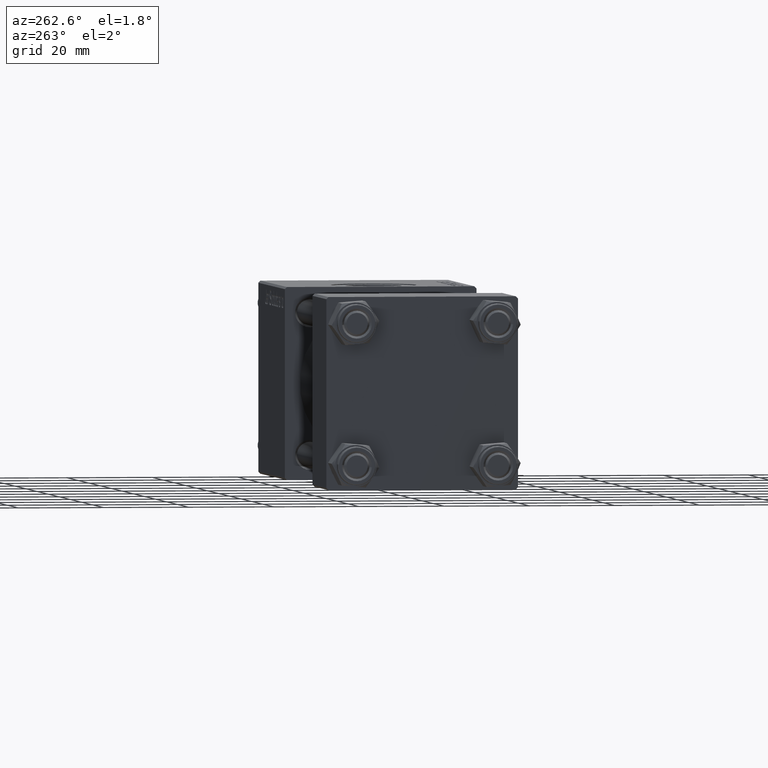
[diagram: clean part render]
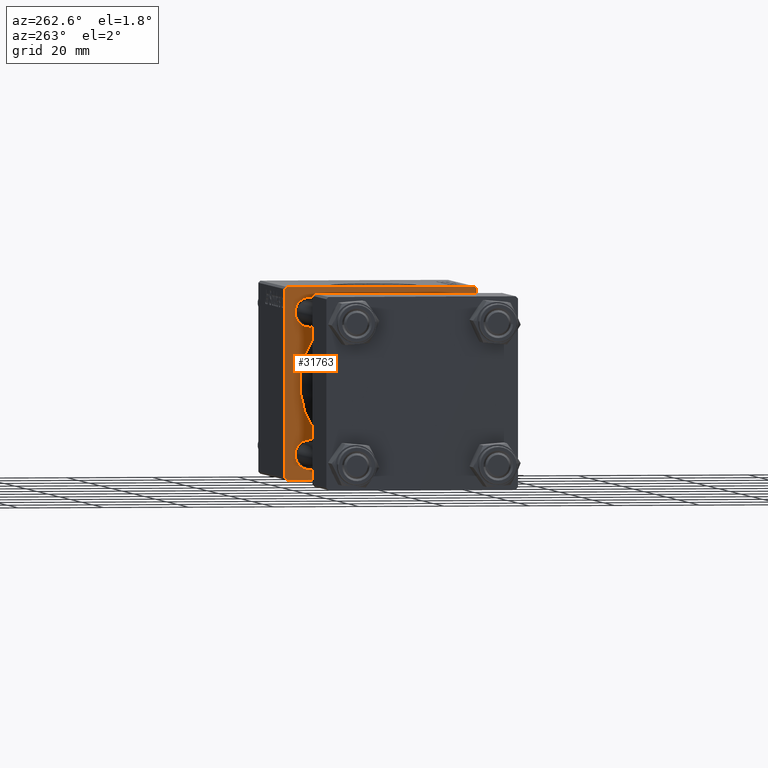
[diagram: same view with one face highlighted and labeled with its STEP entity id]
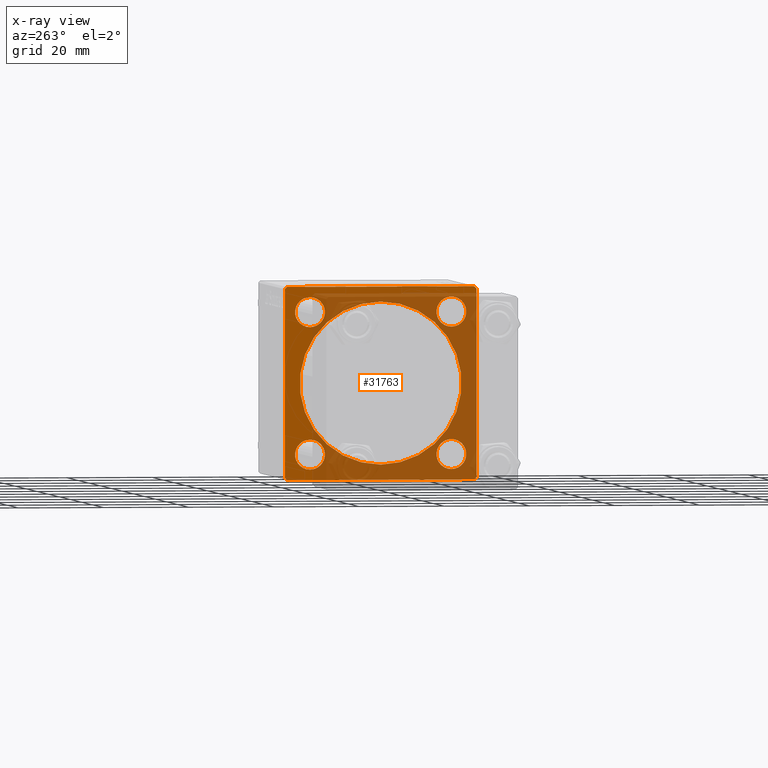
[diagram: x-ray of the same camera — body ghosted, the highlighted face saturated]
A machine part, auxiliary view. The second image highlights one B-rep face of the part: STEP entity #31763.
The next image is the same camera in x-ray: the body ghosted, the highlighted face saturated — about 64% of this face is hidden behind the body in this view.
In plain terms, the highlighted planar face has unit normal (-1, 0, 0).
Its self-contained STEP definition (entity closure, byte-faithful):
#46 = EDGE_CURVE ( 'NONE', #28983, #19035, #45981, .T. ) ;
#94 = EDGE_CURVE ( 'NONE', #28171, #11331, #38461, .T. ) ;
#690 = CARTESIAN_POINT ( 'NONE',  ( 75.00000000000001421, 22.24999999999969802, -22.25000000000031619 ) ) ;
#840 = ORIENTED_EDGE ( 'NONE', *, *, #94, .T. ) ;
#2600 = CIRCLE ( 'NONE', #16367, 3.500000000000016875 ) ;
#3164 = DIRECTION ( 'NONE',  ( 0.000000000000000000, 0.000000000000000000, 1.000000000000000000 ) ) ;
#3290 = CARTESIAN_POINT ( 'NONE',  ( 75.00000000000001421, 21.99999999999996092, 22.50000000000000355 ) ) ;
#4257 = EDGE_CURVE ( 'NONE', #14070, #32878, #22570, .T. ) ;
#4744 = AXIS2_PLACEMENT_3D ( 'NONE', #13042, #56680, #8458 ) ;
#5573 = DIRECTION ( 'NONE',  ( -0.000000000000000000, -0.7071067811865573427, -0.7071067811865378028 ) ) ;
#5699 = CARTESIAN_POINT ( 'NONE',  ( 75.00000000000001421, -16.59999999999999076, -16.60000000000000853 ) ) ;
#6862 = CARTESIAN_POINT ( 'NONE',  ( 75.00000000000001421, -16.59999999999999076, -16.60000000000000853 ) ) ;
#7184 = CARTESIAN_POINT ( 'NONE',  ( 75.00000000000001421, 16.59999999999999787, -16.60000000000000497 ) ) ;
#7505 = AXIS2_PLACEMENT_3D ( 'NONE', #16372, #43046, #33889 ) ;
#7934 = CIRCLE ( 'NONE', #20755, 3.500000000000031086 ) ;
#8071 = DIRECTION ( 'NONE',  ( -1.000000000000000000, 0.000000000000000000, -0.000000000000000000 ) ) ;
#8458 = DIRECTION ( 'NONE',  ( 0.000000000000000000, 0.000000000000000000, -1.000000000000000000 ) ) ;
#8726 = VERTEX_POINT ( 'NONE', #40733 ) ;
#9199 = FACE_BOUND ( 'NONE', #53203, .T. ) ;
#9352 = VECTOR ( 'NONE', #5573, 1000.000000000000000 ) ;
#9434 = VERTEX_POINT ( 'NONE', #39604 ) ;
#10252 = EDGE_LOOP ( 'NONE', ( #47185, #840, #38396, #44539, #15645, #17688, #49747, #10818 ) ) ;
#10411 = EDGE_LOOP ( 'NONE', ( #49089, #30393 ) ) ;
#10435 = EDGE_CURVE ( 'NONE', #28783, #11331, #42753, .T. ) ;
#10595 = CARTESIAN_POINT ( 'NONE',  ( 75.00000000000001421, 16.59999999999999787, 20.10000000000001918 ) ) ;
#10631 = CARTESIAN_POINT ( 'NONE',  ( 75.00000000000001421, -2.752562955852396712E-16, -19.00000000000000000 ) ) ;
#10711 = ORIENTED_EDGE ( 'NONE', *, *, #26306, .T. ) ;
#10818 = ORIENTED_EDGE ( 'NONE', *, *, #41270, .T. ) ;
#10822 = LINE ( 'NONE', #23754, #53049 ) ;
#10922 = CIRCLE ( 'NONE', #33833, 3.500000000000031086 ) ;
#10996 = VECTOR ( 'NONE', #24161, 1000.000000000000000 ) ;
#11331 = VERTEX_POINT ( 'NONE', #39867 ) ;
#11589 = DIRECTION ( 'NONE',  ( 1.000000000000000000, -0.000000000000000000, 0.000000000000000000 ) ) ;
#11865 = DIRECTION ( 'NONE',  ( 0.000000000000000000, 0.000000000000000000, 1.000000000000000000 ) ) ;
#12050 = DIRECTION ( 'NONE',  ( 0.000000000000000000, 0.000000000000000000, -1.000000000000000000 ) ) ;
#12143 = VERTEX_POINT ( 'NONE', #46174 ) ;
#12277 = VERTEX_POINT ( 'NONE', #41046 ) ;
#12932 = PLANE ( 'NONE',  #22966 ) ;
#13042 = CARTESIAN_POINT ( 'NONE',  ( 75.00000000000001421, -2.602085213965210642E-15, 0.000000000000000000 ) ) ;
#14070 = VERTEX_POINT ( 'NONE', #35146 ) ;
#14315 = EDGE_CURVE ( 'NONE', #47778, #16507, #7934, .T. ) ;
#15547 = CARTESIAN_POINT ( 'NONE',  ( 75.00000000000001421, 22.50000000000000355, -22.49999999999999645 ) ) ;
#15645 = ORIENTED_EDGE ( 'NONE', *, *, #38662, .F. ) ;
#16367 = AXIS2_PLACEMENT_3D ( 'NONE', #20495, #11589, #11865 ) ;
#16372 = CARTESIAN_POINT ( 'NONE',  ( 75.00000000000001421, 16.59999999999999787, 16.60000000000000497 ) ) ;
#16507 = VERTEX_POINT ( 'NONE', #49806 ) ;
#16801 = VECTOR ( 'NONE', #12050, 1000.000000000000000 ) ;
#17393 = DIRECTION ( 'NONE',  ( 0.000000000000000000, 0.7071067811865573427, -0.7071067811865378028 ) ) ;
#17681 = EDGE_CURVE ( 'NONE', #27534, #48179, #52001, .T. ) ;
#17688 = ORIENTED_EDGE ( 'NONE', *, *, #52881, .T. ) ;
#18482 = VECTOR ( 'NONE', #17393, 1000.000000000000000 ) ;
#19035 = VERTEX_POINT ( 'NONE', #36393 ) ;
#19848 = LINE ( 'NONE', #15547, #10996 ) ;
#19883 = ORIENTED_EDGE ( 'NONE', *, *, #54006, .T. ) ;
#20227 = CARTESIAN_POINT ( 'NONE',  ( 75.00000000000001421, -16.59999999999999076, 16.60000000000000853 ) ) ;
#20495 = CARTESIAN_POINT ( 'NONE',  ( 75.00000000000001421, 16.59999999999999787, 16.60000000000000497 ) ) ;
#20755 = AXIS2_PLACEMENT_3D ( 'NONE', #7184, #24703, #3164 ) ;
#20783 = DIRECTION ( 'NONE',  ( 1.000000000000000000, 0.000000000000000000, 0.000000000000000000 ) ) ;
#20942 = ORIENTED_EDGE ( 'NONE', *, *, #47169, .T. ) ;
#21352 = ORIENTED_EDGE ( 'NONE', *, *, #17681, .T. ) ;
#21562 = FACE_BOUND ( 'NONE', #41088, .T. ) ;
#21837 = CARTESIAN_POINT ( 'NONE',  ( 75.00000000000001421, -16.59999999999999076, 16.60000000000000853 ) ) ;
#22170 = AXIS2_PLACEMENT_3D ( 'NONE', #20227, #37728, #55258 ) ;
#22216 = VECTOR ( 'NONE', #45379, 1000.000000000000000 ) ;
#22290 = DIRECTION ( 'NONE',  ( 0.000000000000000000, 0.000000000000000000, -1.000000000000000000 ) ) ;
#22375 = DIRECTION ( 'NONE',  ( 0.000000000000000000, -0.7071067811865425767, 0.7071067811865525687 ) ) ;
#22570 = LINE ( 'NONE', #52732, #36840 ) ;
#22966 = AXIS2_PLACEMENT_3D ( 'NONE', #25865, #8071, #51993 ) ;
#23309 = ORIENTED_EDGE ( 'NONE', *, *, #54502, .T. ) ;
#23754 = CARTESIAN_POINT ( 'NONE',  ( 75.00000000000001421, -22.24999999999969447, 22.25000000000030909 ) ) ;
#23756 = CARTESIAN_POINT ( 'NONE',  ( 75.00000000000001421, 22.50000000000000355, -21.99999999999999645 ) ) ;
#24139 = CARTESIAN_POINT ( 'NONE',  ( 75.00000000000001421, -22.49999999999999645, 22.49999999999999289 ) ) ;
#24161 = DIRECTION ( 'NONE',  ( 0.000000000000000000, -1.000000000000000000, -7.709882115452476934E-17 ) ) ;
#24654 = DIRECTION ( 'NONE',  ( 0.000000000000000000, 0.000000000000000000, 1.000000000000000000 ) ) ;
#24703 = DIRECTION ( 'NONE',  ( 1.000000000000000000, -0.000000000000000000, 0.000000000000000000 ) ) ;
#24904 = ORIENTED_EDGE ( 'NONE', *, *, #54891, .T. ) ;
#24996 = CARTESIAN_POINT ( 'NONE',  ( 75.00000000000001421, -16.59999999999999076, 20.10000000000002274 ) ) ;
#25267 = EDGE_CURVE ( 'NONE', #28783, #12277, #10822, .T. ) ;
#25318 = ORIENTED_EDGE ( 'NONE', *, *, #41386, .T. ) ;
#25865 = CARTESIAN_POINT ( 'NONE',  ( 75.00000000000001421, 0.000000000000000000, 0.000000000000000000 ) ) ;
#26306 = EDGE_CURVE ( 'NONE', #19035, #28983, #2600, .T. ) ;
#26397 = CARTESIAN_POINT ( 'NONE',  ( 75.00000000000001421, -22.25000000000015277, -22.24999999999984013 ) ) ;
#27038 = EDGE_CURVE ( 'NONE', #16507, #47778, #10922, .T. ) ;
#27231 = AXIS2_PLACEMENT_3D ( 'NONE', #33995, #20783, #38566 ) ;
#27534 = VERTEX_POINT ( 'NONE', #10631 ) ;
#27881 = CARTESIAN_POINT ( 'NONE',  ( 75.00000000000001421, 22.50000000000000355, 22.50000000000000355 ) ) ;
#27973 = CIRCLE ( 'NONE', #32538, 3.500000000000031086 ) ;
#28171 = VERTEX_POINT ( 'NONE', #43541 ) ;
#28783 = VERTEX_POINT ( 'NONE', #51761 ) ;
#28983 = VERTEX_POINT ( 'NONE', #10595 ) ;
#29515 = CIRCLE ( 'NONE', #4744, 19.00000000000000000 ) ;
#30393 = ORIENTED_EDGE ( 'NONE', *, *, #14315, .T. ) ;
#30852 = EDGE_CURVE ( 'NONE', #12143, #28171, #19848, .T. ) ;
#30882 = LINE ( 'NONE', #35747, #18482 ) ;
#31372 = AXIS2_PLACEMENT_3D ( 'NONE', #21837, #39338, #38491 ) ;
#31763 = ADVANCED_FACE ( 'NONE', ( #9199, #34490, #47395, #21562, #47671, #38780 ), #12932, .T. ) ;
#32000 = LINE ( 'NONE', #690, #9352 ) ;
#32116 = DIRECTION ( 'NONE',  ( 1.000000000000000000, -0.000000000000000000, 0.000000000000000000 ) ) ;
#32538 = AXIS2_PLACEMENT_3D ( 'NONE', #6862, #42141, #24654 ) ;
#32878 = VERTEX_POINT ( 'NONE', #23756 ) ;
#33204 = AXIS2_PLACEMENT_3D ( 'NONE', #5699, #32116, #53654 ) ;
#33833 = AXIS2_PLACEMENT_3D ( 'NONE', #49020, #49582, #41246 ) ;
#33889 = DIRECTION ( 'NONE',  ( 0.000000000000000000, 0.000000000000000000, 1.000000000000000000 ) ) ;
#33995 = CARTESIAN_POINT ( 'NONE',  ( 75.00000000000001421, -2.602085213965210642E-15, 0.000000000000000000 ) ) ;
#34305 = ORIENTED_EDGE ( 'NONE', *, *, #46, .T. ) ;
#34490 = FACE_BOUND ( 'NONE', #52270, .T. ) ;
#34893 = CARTESIAN_POINT ( 'NONE',  ( 75.00000000000001421, -16.59999999999999076, 13.09999999999999076 ) ) ;
#35146 = CARTESIAN_POINT ( 'NONE',  ( 75.00000000000001421, 22.50000000000000355, 21.99999999999997513 ) ) ;
#35747 = CARTESIAN_POINT ( 'NONE',  ( 75.00000000000001421, 22.24999999999968026, 22.25000000000029488 ) ) ;
#36393 = CARTESIAN_POINT ( 'NONE',  ( 75.00000000000001421, 16.59999999999999787, 13.09999999999998721 ) ) ;
#36840 = VECTOR ( 'NONE', #22290, 1000.000000000000000 ) ;
#37728 = DIRECTION ( 'NONE',  ( 1.000000000000000000, -0.000000000000000000, 0.000000000000000000 ) ) ;
#38396 = ORIENTED_EDGE ( 'NONE', *, *, #10435, .F. ) ;
#38461 = LINE ( 'NONE', #26397, #51520 ) ;
#38491 = DIRECTION ( 'NONE',  ( 0.000000000000000000, 0.000000000000000000, 1.000000000000000000 ) ) ;
#38566 = DIRECTION ( 'NONE',  ( 0.000000000000000000, 0.000000000000000000, -1.000000000000000000 ) ) ;
#38662 = EDGE_CURVE ( 'NONE', #43887, #12277, #40500, .T. ) ;
#38780 = FACE_OUTER_BOUND ( 'NONE', #10252, .T. ) ;
#39338 = DIRECTION ( 'NONE',  ( 1.000000000000000000, -0.000000000000000000, 0.000000000000000000 ) ) ;
#39604 = CARTESIAN_POINT ( 'NONE',  ( 75.00000000000001421, -16.59999999999999076, -13.09999999999997655 ) ) ;
#39830 = VERTEX_POINT ( 'NONE', #24996 ) ;
#39867 = CARTESIAN_POINT ( 'NONE',  ( 75.00000000000001421, -22.49999999999999645, -21.99999999999997868 ) ) ;
#40500 = LINE ( 'NONE', #27881, #22216 ) ;
#40733 = CARTESIAN_POINT ( 'NONE',  ( 75.00000000000001421, -16.59999999999999076, -20.10000000000003695 ) ) ;
#41046 = CARTESIAN_POINT ( 'NONE',  ( 75.00000000000001421, -21.99999999999998224, 22.49999999999999289 ) ) ;
#41088 = EDGE_LOOP ( 'NONE', ( #20942, #23309 ) ) ;
#41246 = DIRECTION ( 'NONE',  ( 0.000000000000000000, 0.000000000000000000, 1.000000000000000000 ) ) ;
#41270 = EDGE_CURVE ( 'NONE', #32878, #12143, #32000, .T. ) ;
#41386 = EDGE_CURVE ( 'NONE', #39830, #49969, #53373, .T. ) ;
#42141 = DIRECTION ( 'NONE',  ( 1.000000000000000000, -0.000000000000000000, 0.000000000000000000 ) ) ;
#42753 = LINE ( 'NONE', #24139, #16801 ) ;
#43046 = DIRECTION ( 'NONE',  ( 1.000000000000000000, -0.000000000000000000, 0.000000000000000000 ) ) ;
#43062 = EDGE_LOOP ( 'NONE', ( #24904, #21352 ) ) ;
#43541 = CARTESIAN_POINT ( 'NONE',  ( 75.00000000000001421, -21.99999999999998224, -22.50000000000000000 ) ) ;
#43887 = VERTEX_POINT ( 'NONE', #3290 ) ;
#44539 = ORIENTED_EDGE ( 'NONE', *, *, #25267, .T. ) ;
#45379 = DIRECTION ( 'NONE',  ( 0.000000000000000000, -1.000000000000000000, -2.312964634635742957E-16 ) ) ;
#45981 = CIRCLE ( 'NONE', #7505, 3.500000000000016875 ) ;
#46174 = CARTESIAN_POINT ( 'NONE',  ( 75.00000000000001421, 22.00000000000000355, -22.49999999999999645 ) ) ;
#46410 = DIRECTION ( 'NONE',  ( -0.000000000000000000, 0.7071067811865573427, 0.7071067811865378028 ) ) ;
#47169 = EDGE_CURVE ( 'NONE', #9434, #8726, #27973, .T. ) ;
#47185 = ORIENTED_EDGE ( 'NONE', *, *, #30852, .T. ) ;
#47395 = FACE_BOUND ( 'NONE', #10411, .T. ) ;
#47671 = FACE_BOUND ( 'NONE', #43062, .T. ) ;
#47778 = VERTEX_POINT ( 'NONE', #54243 ) ;
#48098 = CARTESIAN_POINT ( 'NONE',  ( 75.00000000000001421, -2.602085213965210642E-15, 19.00000000000000000 ) ) ;
#48179 = VERTEX_POINT ( 'NONE', #48098 ) ;
#48769 = CIRCLE ( 'NONE', #22170, 3.500000000000016875 ) ;
#49020 = CARTESIAN_POINT ( 'NONE',  ( 75.00000000000001421, 16.59999999999999787, -16.60000000000000497 ) ) ;
#49089 = ORIENTED_EDGE ( 'NONE', *, *, #27038, .T. ) ;
#49582 = DIRECTION ( 'NONE',  ( 1.000000000000000000, -0.000000000000000000, 0.000000000000000000 ) ) ;
#49747 = ORIENTED_EDGE ( 'NONE', *, *, #4257, .T. ) ;
#49806 = CARTESIAN_POINT ( 'NONE',  ( 75.00000000000001421, 16.59999999999999787, -13.09999999999997300 ) ) ;
#49969 = VERTEX_POINT ( 'NONE', #34893 ) ;
#51520 = VECTOR ( 'NONE', #22375, 999.9999999999998863 ) ;
#51761 = CARTESIAN_POINT ( 'NONE',  ( 75.00000000000001421, -22.49999999999999645, 22.00000000000000711 ) ) ;
#51993 = DIRECTION ( 'NONE',  ( -0.000000000000000000, 0.000000000000000000, 1.000000000000000000 ) ) ;
#52001 = CIRCLE ( 'NONE', #27231, 19.00000000000000000 ) ;
#52270 = EDGE_LOOP ( 'NONE', ( #34305, #10711 ) ) ;
#52421 = CIRCLE ( 'NONE', #33204, 3.500000000000031086 ) ;
#52732 = CARTESIAN_POINT ( 'NONE',  ( 75.00000000000001421, 22.50000000000000355, 22.50000000000000355 ) ) ;
#52881 = EDGE_CURVE ( 'NONE', #43887, #14070, #30882, .T. ) ;
#53049 = VECTOR ( 'NONE', #46410, 1000.000000000000000 ) ;
#53203 = EDGE_LOOP ( 'NONE', ( #25318, #19883 ) ) ;
#53373 = CIRCLE ( 'NONE', #31372, 3.500000000000016875 ) ;
#53654 = DIRECTION ( 'NONE',  ( 0.000000000000000000, 0.000000000000000000, 1.000000000000000000 ) ) ;
#54006 = EDGE_CURVE ( 'NONE', #49969, #39830, #48769, .T. ) ;
#54243 = CARTESIAN_POINT ( 'NONE',  ( 75.00000000000001421, 16.59999999999999787, -20.10000000000003340 ) ) ;
#54502 = EDGE_CURVE ( 'NONE', #8726, #9434, #52421, .T. ) ;
#54891 = EDGE_CURVE ( 'NONE', #48179, #27534, #29515, .T. ) ;
#55258 = DIRECTION ( 'NONE',  ( 0.000000000000000000, 0.000000000000000000, 1.000000000000000000 ) ) ;
#56680 = DIRECTION ( 'NONE',  ( 1.000000000000000000, 0.000000000000000000, 0.000000000000000000 ) ) ;